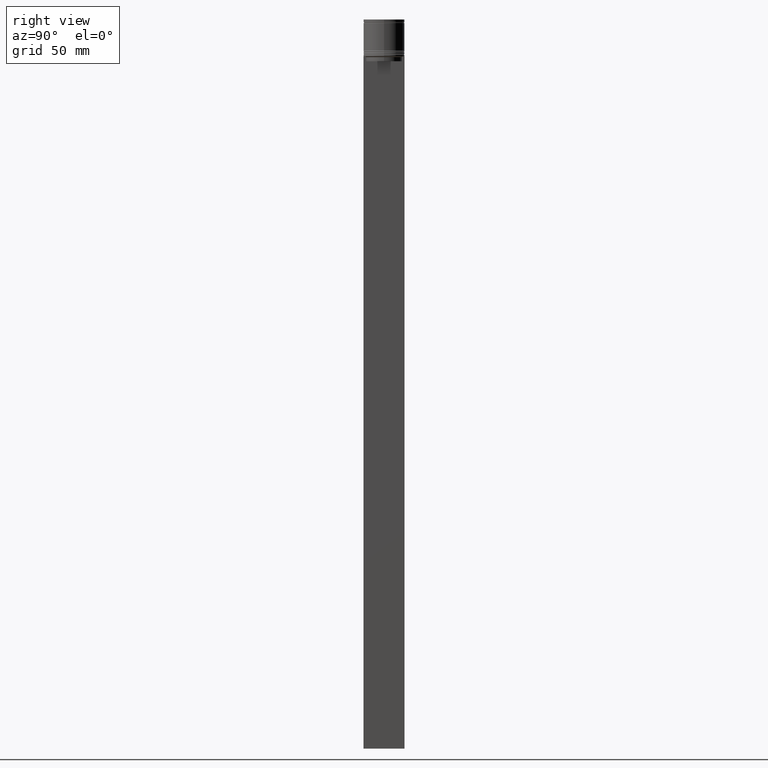
[diagram: clean part render]
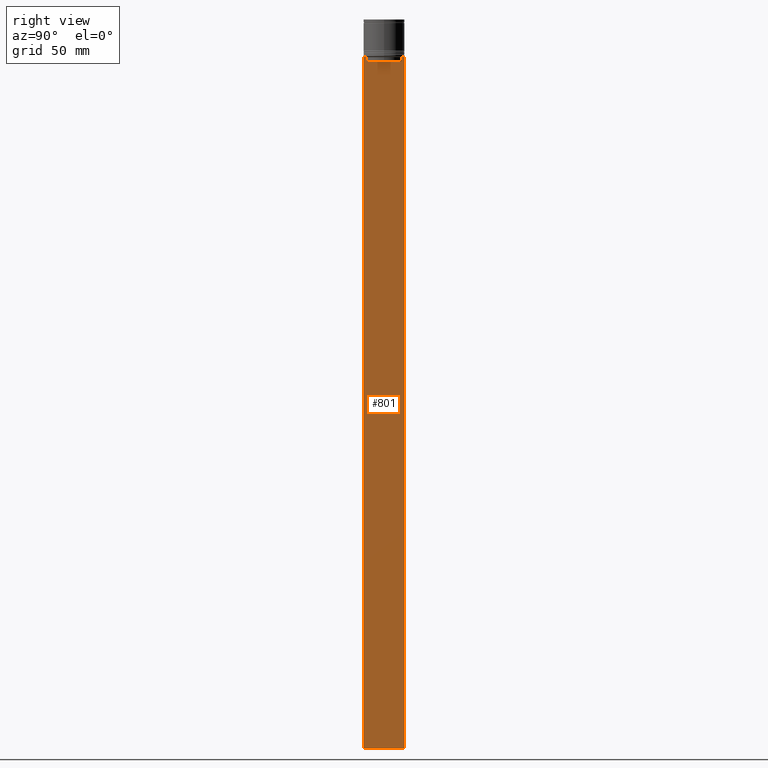
[diagram: same view with one face highlighted and labeled with its STEP entity id]
A machine part, right view. The second image highlights one B-rep face of the part: STEP entity #801.
In plain terms, the highlighted planar face has unit normal (-1, 0, 0).
Its self-contained STEP definition (entity closure, byte-faithful):
#12 = VECTOR ( 'NONE', #1579, 1000.000000000000000 ) ;
#161 = CARTESIAN_POINT ( 'NONE',  ( 0.5000000000000000000, -12.49999999999999289, -22.50000000000000000 ) ) ;
#172 = VECTOR ( 'NONE', #278, 1000.000000000000000 ) ;
#191 = LINE ( 'NONE', #1807, #371 ) ;
#221 = VERTEX_POINT ( 'NONE', #1894 ) ;
#242 = LINE ( 'NONE', #1900, #1276 ) ;
#278 = DIRECTION ( 'NONE',  ( 0.000000000000000000, 0.000000000000000000, -1.000000000000000000 ) ) ;
#297 = DIRECTION ( 'NONE',  ( 0.000000000000000000, -1.000000000000000000, 0.000000000000000000 ) ) ;
#302 = AXIS2_PLACEMENT_3D ( 'NONE', #365, #1169, #1185 ) ;
#328 = CARTESIAN_POINT ( 'NONE',  ( 0.5000000000000000000, -10.88852607105296855, -25.50000000000000000 ) ) ;
#331 = CARTESIAN_POINT ( 'NONE',  ( 0.5000000000000000000, -12.49999999999999289, -22.50000000000000000 ) ) ;
#334 = CARTESIAN_POINT ( 'NONE',  ( 0.5000000000000000000, 12.50000000000000711, -444.5000000000000000 ) ) ;
#339 = VERTEX_POINT ( 'NONE', #334 ) ;
#342 = ORIENTED_EDGE ( 'NONE', *, *, #1212, .T. ) ;
#356 = B_SPLINE_CURVE_WITH_KNOTS ( 'NONE', 3,
 ( #699, #535, #527, #841 ),
 .UNSPECIFIED., .F., .F.,
 ( 4, 4 ),
 ( 0.05041323384703231408, 0.05112713601261610619 ),
 .UNSPECIFIED. ) ;
#365 = CARTESIAN_POINT ( 'NONE',  ( 0.5000000000000000000, -12.49999999999999289, 2.519992006393609874 ) ) ;
#368 = DIRECTION ( 'NONE',  ( 0.000000000000000000, 0.000000000000000000, -1.000000000000000000 ) ) ;
#371 = VECTOR ( 'NONE', #368, 1000.000000000000000 ) ;
#412 = ORIENTED_EDGE ( 'NONE', *, *, #1194, .T. ) ;
#432 = CARTESIAN_POINT ( 'NONE',  ( 0.5000000000000000000, 10.88852607105297032, 0.000000000000000000 ) ) ;
#459 = LINE ( 'NONE', #1744, #1116 ) ;
#486 = EDGE_CURVE ( 'NONE', #1476, #1558, #356, .T. ) ;
#506 = CARTESIAN_POINT ( 'NONE',  ( 0.5000000000000000000, -12.49999999999999289, -444.5000000000000000 ) ) ;
#520 = EDGE_CURVE ( 'NONE', #742, #898, #191, .T. ) ;
#527 = CARTESIAN_POINT ( 'NONE',  ( 0.5000000000000000000, -11.22219891450653151, -22.66667035398018726 ) ) ;
#535 = CARTESIAN_POINT ( 'NONE',  ( 0.5000000000000000000, -11.05536450423839412, -22.83333718996392747 ) ) ;
#574 = ORIENTED_EDGE ( 'NONE', *, *, #1576, .F. ) ;
#609 = EDGE_CURVE ( 'NONE', #615, #1313, #1369, .T. ) ;
#615 = VERTEX_POINT ( 'NONE', #1360 ) ;
#638 = ORIENTED_EDGE ( 'NONE', *, *, #1973, .T. ) ;
#641 = VECTOR ( 'NONE', #1207, 1000.000000000000000 ) ;
#653 = EDGE_CURVE ( 'NONE', #1558, #1121, #242, .T. ) ;
#665 = CARTESIAN_POINT ( 'NONE',  ( 0.5000000000000000000, -11.38902980942626897, -22.50000000000000000 ) ) ;
#699 = CARTESIAN_POINT ( 'NONE',  ( 0.5000000000000000000, -10.88852607105297032, -22.99999999999999645 ) ) ;
#715 = VERTEX_POINT ( 'NONE', #968 ) ;
#742 = VERTEX_POINT ( 'NONE', #161 ) ;
#749 = CARTESIAN_POINT ( 'NONE',  ( 0.5000000000000000000, -10.88852607105297032, 0.000000000000000000 ) ) ;
#777 = CARTESIAN_POINT ( 'NONE',  ( 0.5000000000000000000, 12.50000000000000711, -22.50000000000000000 ) ) ;
#779 = CARTESIAN_POINT ( 'NONE',  ( 0.5000000000000000000, -12.49999999999999289, -22.50000000000000000 ) ) ;
#795 = CARTESIAN_POINT ( 'NONE',  ( 0.5000000000000000000, 11.38902980942626897, -22.50000000000000000 ) ) ;
#796 = VERTEX_POINT ( 'NONE', #777 ) ;
#801 = ADVANCED_FACE ( 'NONE', ( #1825 ), #860, .F. ) ;
#841 = CARTESIAN_POINT ( 'NONE',  ( 0.5000000000000000000, -11.38902980942626897, -22.50000000000000000 ) ) ;
#847 = CARTESIAN_POINT ( 'NONE',  ( 0.5000000000000000000, 11.22219891375843126, -22.66667035472756808 ) ) ;
#860 = PLANE ( 'NONE',  #302 ) ;
#879 = CARTESIAN_POINT ( 'NONE',  ( 0.5000000000000000000, -10.88852607105297032, -22.99999999999999645 ) ) ;
#880 = VECTOR ( 'NONE', #1409, 1000.000000000000000 ) ;
#886 = ORIENTED_EDGE ( 'NONE', *, *, #520, .T. ) ;
#898 = VERTEX_POINT ( 'NONE', #1814 ) ;
#943 = CARTESIAN_POINT ( 'NONE',  ( 0.5000000000000000000, 12.50000000000000711, 2.519992006393609874 ) ) ;
#956 = VECTOR ( 'NONE', #1108, 1000.000000000000000 ) ;
#968 = CARTESIAN_POINT ( 'NONE',  ( 0.5000000000000000000, 11.38902980942626897, -22.50000000000000000 ) ) ;
#1108 = DIRECTION ( 'NONE',  ( 0.000000000000000000, -1.000000000000000000, 0.000000000000000000 ) ) ;
#1116 = VECTOR ( 'NONE', #297, 1000.000000000000000 ) ;
#1121 = VERTEX_POINT ( 'NONE', #1921 ) ;
#1169 = DIRECTION ( 'NONE',  ( -1.000000000000000000, 0.000000000000000000, 0.000000000000000000 ) ) ;
#1173 = CARTESIAN_POINT ( 'NONE',  ( 0.5000000000000000000, 10.88852607105297032, -22.99999999999999645 ) ) ;
#1185 = DIRECTION ( 'NONE',  ( 0.000000000000000000, 0.000000000000000000, 1.000000000000000000 ) ) ;
#1194 = EDGE_CURVE ( 'NONE', #1121, #742, #459, .T. ) ;
#1207 = DIRECTION ( 'NONE',  ( 0.000000000000000000, -1.000000000000000000, 0.000000000000000000 ) ) ;
#1212 = EDGE_CURVE ( 'NONE', #715, #1755, #1588, .T. ) ;
#1243 = ORIENTED_EDGE ( 'NONE', *, *, #1545, .T. ) ;
#1262 = LINE ( 'NONE', #779, #12 ) ;
#1271 = LINE ( 'NONE', #331, #956 ) ;
#1276 = VECTOR ( 'NONE', #1923, 1000.000000000000000 ) ;
#1296 = ORIENTED_EDGE ( 'NONE', *, *, #653, .T. ) ;
#1313 = VERTEX_POINT ( 'NONE', #328 ) ;
#1334 = CARTESIAN_POINT ( 'NONE',  ( 0.5000000000000000000, 10.88852607105297032, -22.99999999999999645 ) ) ;
#1360 = CARTESIAN_POINT ( 'NONE',  ( 0.5000000000000000000, 10.88852607105296855, -25.50000000000000000 ) ) ;
#1369 = LINE ( 'NONE', #1706, #641 ) ;
#1397 = LINE ( 'NONE', #943, #1724 ) ;
#1409 = DIRECTION ( 'NONE',  ( 0.000000000000000000, 1.000000000000000000, 0.000000000000000000 ) ) ;
#1421 = ORIENTED_EDGE ( 'NONE', *, *, #1426, .T. ) ;
#1426 = EDGE_CURVE ( 'NONE', #1313, #1476, #1841, .T. ) ;
#1459 = ORIENTED_EDGE ( 'NONE', *, *, #2000, .T. ) ;
#1476 = VERTEX_POINT ( 'NONE', #879 ) ;
#1545 = EDGE_CURVE ( 'NONE', #898, #339, #1638, .T. ) ;
#1558 = VERTEX_POINT ( 'NONE', #665 ) ;
#1576 = EDGE_CURVE ( 'NONE', #796, #339, #1397, .T. ) ;
#1579 = DIRECTION ( 'NONE',  ( 0.000000000000000000, -1.000000000000000000, 0.000000000000000000 ) ) ;
#1586 = DIRECTION ( 'NONE',  ( 0.000000000000000000, 0.000000000000000000, -1.000000000000000000 ) ) ;
#1588 = B_SPLINE_CURVE_WITH_KNOTS ( 'NONE', 3,
 ( #795, #847, #1981, #1173 ),
 .UNSPECIFIED., .F., .F.,
 ( 4, 4 ),
 ( 0.01935560801904635808, 0.02006307108468587813 ),
 .UNSPECIFIED. ) ;
#1591 = VECTOR ( 'NONE', #2006, 1000.000000000000000 ) ;
#1604 = EDGE_LOOP ( 'NONE', ( #638, #342, #1788, #2009, #1421, #2085, #1296, #412, #886, #1243, #574, #1459 ) ) ;
#1638 = LINE ( 'NONE', #506, #880 ) ;
#1670 = EDGE_CURVE ( 'NONE', #1755, #615, #1871, .T. ) ;
#1706 = CARTESIAN_POINT ( 'NONE',  ( 0.5000000000000000000, 10.90000000000000924, -25.50000000000000000 ) ) ;
#1724 = VECTOR ( 'NONE', #1586, 1000.000000000000000 ) ;
#1744 = CARTESIAN_POINT ( 'NONE',  ( 0.5000000000000000000, -12.49999999999999289, -22.50000000000000000 ) ) ;
#1755 = VERTEX_POINT ( 'NONE', #1334 ) ;
#1788 = ORIENTED_EDGE ( 'NONE', *, *, #1670, .T. ) ;
#1807 = CARTESIAN_POINT ( 'NONE',  ( 0.5000000000000000000, -12.49999999999999289, 2.519992006393609874 ) ) ;
#1814 = CARTESIAN_POINT ( 'NONE',  ( 0.5000000000000000000, -12.49999999999999289, -444.5000000000000000 ) ) ;
#1825 = FACE_OUTER_BOUND ( 'NONE', #1604, .T. ) ;
#1841 = LINE ( 'NONE', #749, #1591 ) ;
#1871 = LINE ( 'NONE', #432, #172 ) ;
#1894 = CARTESIAN_POINT ( 'NONE',  ( 0.5000000000000000000, 12.38991525394746596, -22.50000000000000000 ) ) ;
#1900 = CARTESIAN_POINT ( 'NONE',  ( 0.5000000000000000000, -12.49999999999999289, -22.50000000000000000 ) ) ;
#1921 = CARTESIAN_POINT ( 'NONE',  ( 0.5000000000000000000, -12.38991525394746596, -22.50000000000000000 ) ) ;
#1923 = DIRECTION ( 'NONE',  ( 0.000000000000000000, -1.000000000000000000, 0.000000000000000000 ) ) ;
#1973 = EDGE_CURVE ( 'NONE', #221, #715, #1262, .T. ) ;
#1981 = CARTESIAN_POINT ( 'NONE',  ( 0.5000000000000000000, 11.05536450345590715, -22.83333719074559554 ) ) ;
#2000 = EDGE_CURVE ( 'NONE', #796, #221, #1271, .T. ) ;
#2006 = DIRECTION ( 'NONE',  ( -0.000000000000000000, -0.000000000000000000, 1.000000000000000000 ) ) ;
#2009 = ORIENTED_EDGE ( 'NONE', *, *, #609, .T. ) ;
#2085 = ORIENTED_EDGE ( 'NONE', *, *, #486, .T. ) ;